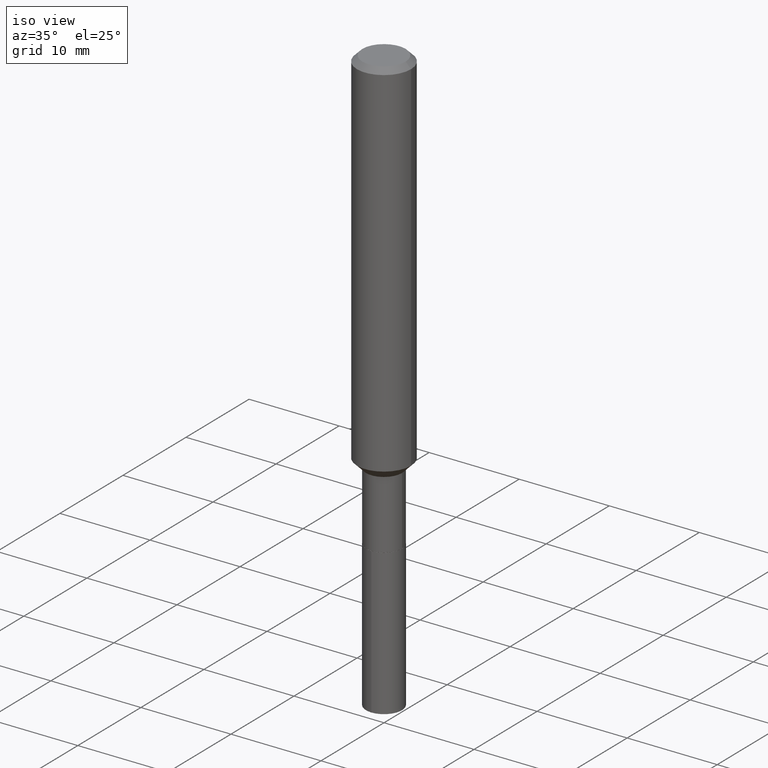
[diagram: clean part render]
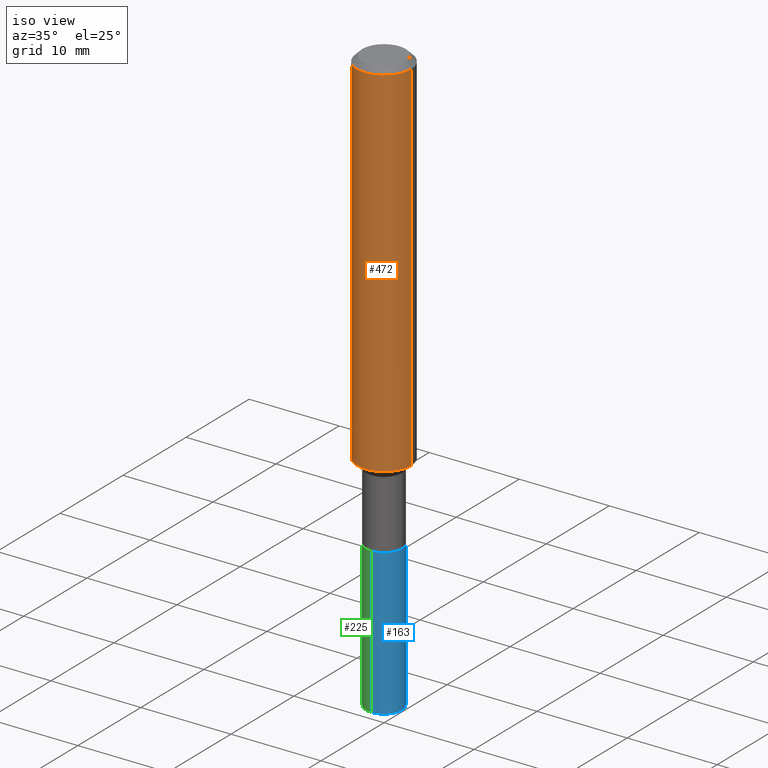
[diagram: same view with three faces highlighted in distinct colors, each labeled with its STEP entity id]
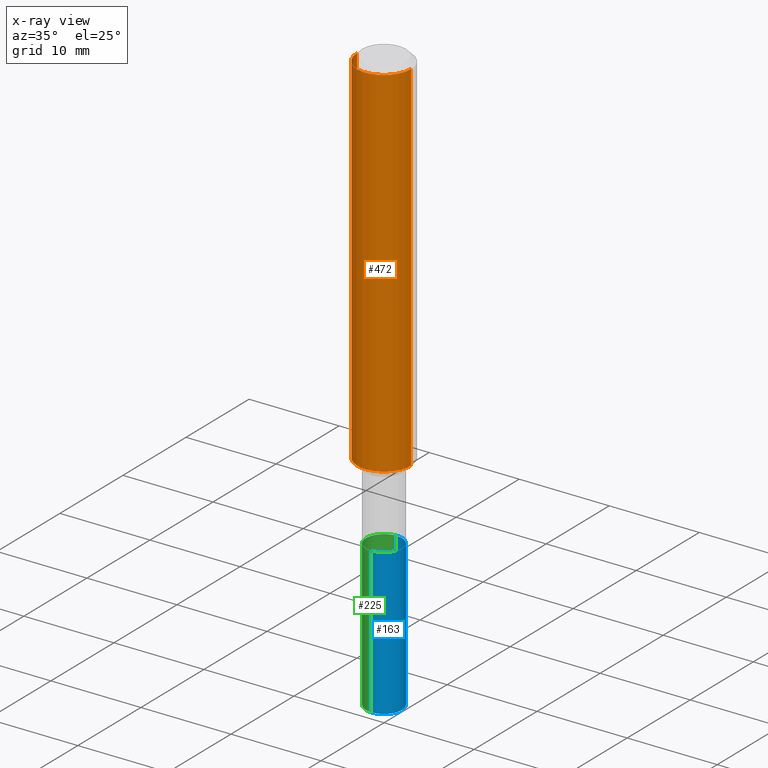
[diagram: x-ray of the same camera — body ghosted, the three highlighted faces saturated]
A machine part, iso view with three faces highlighted in distinct colors.
The next image is the same camera in x-ray (body ghosted, the three faces saturated) — at least one of them is partly hidden behind the body in this view.
Their STEP definitions:

[orange] entity #472 — the highlighted cylindrical surface (edge-blend (fillet) strip) has radius 2.9997 mm, axis along (-0, 0, 1).
#9 = VECTOR ( 'NONE', #148, 39.37007874015748143 ) ;
#10 = AXIS2_PLACEMENT_3D ( 'NONE', #476, #391, #58 ) ;
#18 = VERTEX_POINT ( 'NONE', #77 ) ;
#28 = CARTESIAN_POINT ( 'NONE',  ( 0.1181000000000001909, -6.378063535731712963E-15, -1.590549999999999464 ) ) ;
#58 = DIRECTION ( 'NONE',  ( 1.000000000000000000, -6.982962677686266711E-15, 4.876176775795935793E-29 ) ) ;
#61 = DIRECTION ( 'NONE',  ( 1.000000000000000000, -6.982962677686266711E-15, 0.000000000000000000 ) ) ;
#65 = CARTESIAN_POINT ( 'NONE',  ( -0.1181000000000001077, 8.391509709326790846E-16, -5.809262341591049389E-30 ) ) ;
#75 = EDGE_CURVE ( 'NONE', #365, #215, #305, .T. ) ;
#77 = CARTESIAN_POINT ( 'NONE',  ( -0.1180999999999999966, -1.978771245427539515E-15, -0.02362000000000014088 ) ) ;
#89 = AXIS2_PLACEMENT_3D ( 'NONE', #99, #399, #61 ) ;
#91 = ORIENTED_EDGE ( 'NONE', *, *, #75, .T. ) ;
#99 = CARTESIAN_POINT ( 'NONE',  ( 5.776197320209327532E-31, -8.246878922347559293E-17, -0.02362000000000014088 ) ) ;
#125 = ORIENTED_EDGE ( 'NONE', *, *, #348, .F. ) ;
#141 = EDGE_CURVE ( 'NONE', #290, #365, #420, .T. ) ;
#148 = DIRECTION ( 'NONE',  ( -2.445468806185136877E-29, 3.491481338843145188E-15, 1.000000000000000000 ) ) ;
#170 = CARTESIAN_POINT ( 'NONE',  ( 0.1180999999999999966, -9.071566814582237199E-16, -0.02362000000000014088 ) ) ;
#180 = LINE ( 'NONE', #65, #271 ) ;
#181 = ORIENTED_EDGE ( 'NONE', *, *, #141, .T. ) ;
#215 = VERTEX_POINT ( 'NONE', #170 ) ;
#248 = CYLINDRICAL_SURFACE ( 'NONE', #10, 0.1181000000000001077 ) ;
#271 = VECTOR ( 'NONE', #326, 39.37007874015748143 ) ;
#273 = DIRECTION ( 'NONE',  ( -2.445468806185136597E-29, 3.491481338843145583E-15, 1.000000000000000000 ) ) ;
#290 = VERTEX_POINT ( 'NONE', #426 ) ;
#299 = AXIS2_PLACEMENT_3D ( 'NONE', #374, #273, #302 ) ;
#302 = DIRECTION ( 'NONE',  ( 1.000000000000000000, -6.982962677686269077E-15, 0.000000000000000000 ) ) ;
#305 = LINE ( 'NONE', #380, #9 ) ;
#326 = DIRECTION ( 'NONE',  ( -2.445468806185136877E-29, 3.491481338843145188E-15, 1.000000000000000000 ) ) ;
#348 = EDGE_CURVE ( 'NONE', #290, #18, #180, .T. ) ;
#365 = VERTEX_POINT ( 'NONE', #28 ) ;
#374 = CARTESIAN_POINT ( 'NONE',  ( 3.889640409677768194E-29, -5.553375643496963912E-15, -1.590549999999999464 ) ) ;
#380 = CARTESIAN_POINT ( 'NONE',  ( 0.1181000000000001077, -8.246878922347488542E-16, 5.758764772215005345E-30 ) ) ;
#391 = DIRECTION ( 'NONE',  ( -2.445468806185136597E-29, 3.491481338843145583E-15, 1.000000000000000000 ) ) ;
#399 = DIRECTION ( 'NONE',  ( -2.445468806185136597E-29, 3.491481338843145583E-15, 1.000000000000000000 ) ) ;
#404 = CIRCLE ( 'NONE', #89, 0.1180999999999999966 ) ;
#420 = CIRCLE ( 'NONE', #299, 0.1181000000000001909 ) ;
#426 = CARTESIAN_POINT ( 'NONE',  ( -0.1181000000000001909, -4.714224672564283348E-15, -1.590549999999999464 ) ) ;
#427 = EDGE_CURVE ( 'NONE', #18, #215, #404, .T. ) ;
#431 = FACE_OUTER_BOUND ( 'NONE', #437, .T. ) ;
#437 = EDGE_LOOP ( 'NONE', ( #125, #181, #91, #468 ) ) ;
#468 = ORIENTED_EDGE ( 'NONE', *, *, #427, .F. ) ;
#472 = ADVANCED_FACE ( 'NONE', ( #431 ), #248, .T. ) ;
#476 = CARTESIAN_POINT ( 'NONE',  ( 0.000000000000000000, 0.000000000000000000, 0.000000000000000000 ) ) ;

[blue] entity #163 — the highlighted cylindrical surface (edge-blend (fillet) strip) has radius 2.0002 mm, axis along (-0, 0, 1).
#12 = DIRECTION ( 'NONE',  ( -2.445600324468022812E-29, 3.491292997176496654E-15, 1.000000000000000000 ) ) ;
#13 = CARTESIAN_POINT ( 'NONE',  ( 5.595524044111417134E-16, 0.07874999999999326983, -1.929100000000000259 ) ) ;
#45 = AXIS2_PLACEMENT_3D ( 'NONE', #356, #12, #382 ) ;
#56 = ORIENTED_EDGE ( 'NONE', *, *, #157, .T. ) ;
#97 = LINE ( 'NONE', #359, #430 ) ;
#101 = CARTESIAN_POINT ( 'NONE',  ( -5.499083108677304340E-16, -0.07875000000000892397, -2.567379550045322478 ) ) ;
#123 = CARTESIAN_POINT ( 'NONE',  ( -5.499083108677462112E-16, -0.07875000000000671740, -1.929099999999999593 ) ) ;
#154 = CARTESIAN_POINT ( 'NONE',  ( 5.595524044111415162E-16, 0.07874999999999102163, -2.567379550045323811 ) ) ;
#155 = CYLINDRICAL_SURFACE ( 'NONE', #438, 0.07875000000000000056 ) ;
#156 = DIRECTION ( 'NONE',  ( -2.445600324468022812E-29, 3.491292997176496654E-15, 1.000000000000000000 ) ) ;
#157 = EDGE_CURVE ( 'NONE', #484, #202, #192, .T. ) ;
#163 = ADVANCED_FACE ( 'NONE', ( #448 ), #155, .T. ) ;
#176 = EDGE_CURVE ( 'NONE', #283, #202, #203, .T. ) ;
#184 = ORIENTED_EDGE ( 'NONE', *, *, #176, .F. ) ;
#186 = ORIENTED_EDGE ( 'NONE', *, *, #398, .F. ) ;
#192 = LINE ( 'NONE', #340, #470 ) ;
#202 = VERTEX_POINT ( 'NONE', #13 ) ;
#203 = CIRCLE ( 'NONE', #490, 0.07875000000000000056 ) ;
#212 = DIRECTION ( 'NONE',  ( -2.445600324468022531E-29, 3.491292997176496654E-15, 1.000000000000000000 ) ) ;
#246 = DIRECTION ( 'NONE',  ( -2.445600324468022812E-29, 3.491292997176496654E-15, 1.000000000000000000 ) ) ;
#251 = EDGE_CURVE ( 'NONE', #388, #484, #260, .T. ) ;
#260 = CIRCLE ( 'NONE', #45, 0.07875000000000000056 ) ;
#265 = DIRECTION ( 'NONE',  ( -6.982962677686264344E-15, -1.000000000000000000, 3.469013325287953293E-15 ) ) ;
#283 = VERTEX_POINT ( 'NONE', #123 ) ;
#308 = DIRECTION ( 'NONE',  ( -2.445600324468022531E-29, 3.491292997176496654E-15, 1.000000000000000000 ) ) ;
#325 = EDGE_LOOP ( 'NONE', ( #441, #56, #184, #186 ) ) ;
#340 = CARTESIAN_POINT ( 'NONE',  ( 5.595524044111259361E-16, 0.07874999999999326983, -1.929100000000000259 ) ) ;
#356 = CARTESIAN_POINT ( 'NONE',  ( 6.278530548703893872E-29, -8.963837574076513446E-15, -2.567379550045322922 ) ) ;
#359 = CARTESIAN_POINT ( 'NONE',  ( -5.499083108677462112E-16, -0.07875000000000671740, -1.929099999999999593 ) ) ;
#382 = DIRECTION ( 'NONE',  ( -6.982962677686264344E-15, -1.000000000000000000, 6.938026650575906587E-15 ) ) ;
#388 = VERTEX_POINT ( 'NONE', #101 ) ;
#398 = EDGE_CURVE ( 'NONE', #388, #283, #97, .T. ) ;
#411 = CARTESIAN_POINT ( 'NONE',  ( 4.717553874011746679E-29, -6.735416650762311704E-15, -1.929099999999999815 ) ) ;
#430 = VECTOR ( 'NONE', #212, 39.37007874015748143 ) ;
#438 = AXIS2_PLACEMENT_3D ( 'NONE', #489, #156, #265 ) ;
#441 = ORIENTED_EDGE ( 'NONE', *, *, #251, .T. ) ;
#448 = FACE_OUTER_BOUND ( 'NONE', #325, .T. ) ;
#467 = DIRECTION ( 'NONE',  ( -6.982962677686264344E-15, -1.000000000000000000, 3.469013325287953293E-15 ) ) ;
#470 = VECTOR ( 'NONE', #308, 39.37007874015748143 ) ;
#484 = VERTEX_POINT ( 'NONE', #154 ) ;
#489 = CARTESIAN_POINT ( 'NONE',  ( 4.717553874011746679E-29, -6.735416650762311704E-15, -1.929099999999999815 ) ) ;
#490 = AXIS2_PLACEMENT_3D ( 'NONE', #411, #246, #467 ) ;

[green] entity #225 — the highlighted cylindrical surface (edge-blend (fillet) strip) has radius 2.0002 mm, axis along (-0, 0, 1).
#2 = EDGE_CURVE ( 'NONE', #484, #388, #211, .T. ) ;
#4 = DIRECTION ( 'NONE',  ( -6.982962677686264344E-15, -1.000000000000000000, 6.938026650575906587E-15 ) ) ;
#13 = CARTESIAN_POINT ( 'NONE',  ( 5.595524044111417134E-16, 0.07874999999999326983, -1.929100000000000259 ) ) ;
#41 = EDGE_LOOP ( 'NONE', ( #213, #63, #443, #51 ) ) ;
#48 = DIRECTION ( 'NONE',  ( -6.982962677686264344E-15, -1.000000000000000000, 3.469013325287953293E-15 ) ) ;
#51 = ORIENTED_EDGE ( 'NONE', *, *, #244, .F. ) ;
#63 = ORIENTED_EDGE ( 'NONE', *, *, #2, .T. ) ;
#72 = AXIS2_PLACEMENT_3D ( 'NONE', #373, #270, #4 ) ;
#97 = LINE ( 'NONE', #359, #430 ) ;
#101 = CARTESIAN_POINT ( 'NONE',  ( -5.499083108677304340E-16, -0.07875000000000892397, -2.567379550045322478 ) ) ;
#120 = AXIS2_PLACEMENT_3D ( 'NONE', #240, #428, #239 ) ;
#123 = CARTESIAN_POINT ( 'NONE',  ( -5.499083108677462112E-16, -0.07875000000000671740, -1.929099999999999593 ) ) ;
#154 = CARTESIAN_POINT ( 'NONE',  ( 5.595524044111415162E-16, 0.07874999999999102163, -2.567379550045323811 ) ) ;
#157 = EDGE_CURVE ( 'NONE', #484, #202, #192, .T. ) ;
#192 = LINE ( 'NONE', #340, #470 ) ;
#197 = CIRCLE ( 'NONE', #284, 0.07875000000000000056 ) ;
#202 = VERTEX_POINT ( 'NONE', #13 ) ;
#211 = CIRCLE ( 'NONE', #72, 0.07875000000000000056 ) ;
#212 = DIRECTION ( 'NONE',  ( -2.445600324468022531E-29, 3.491292997176496654E-15, 1.000000000000000000 ) ) ;
#213 = ORIENTED_EDGE ( 'NONE', *, *, #157, .F. ) ;
#225 = ADVANCED_FACE ( 'NONE', ( #316 ), #282, .T. ) ;
#239 = DIRECTION ( 'NONE',  ( -6.982962677686264344E-15, -1.000000000000000000, 3.469013325287953293E-15 ) ) ;
#240 = CARTESIAN_POINT ( 'NONE',  ( 4.717553874011746679E-29, -6.735416650762311704E-15, -1.929099999999999815 ) ) ;
#244 = EDGE_CURVE ( 'NONE', #202, #283, #197, .T. ) ;
#270 = DIRECTION ( 'NONE',  ( -2.445600324468022812E-29, 3.491292997176496654E-15, 1.000000000000000000 ) ) ;
#282 = CYLINDRICAL_SURFACE ( 'NONE', #120, 0.07875000000000000056 ) ;
#283 = VERTEX_POINT ( 'NONE', #123 ) ;
#284 = AXIS2_PLACEMENT_3D ( 'NONE', #315, #312, #48 ) ;
#308 = DIRECTION ( 'NONE',  ( -2.445600324468022531E-29, 3.491292997176496654E-15, 1.000000000000000000 ) ) ;
#312 = DIRECTION ( 'NONE',  ( -2.445600324468022812E-29, 3.491292997176496654E-15, 1.000000000000000000 ) ) ;
#315 = CARTESIAN_POINT ( 'NONE',  ( 4.717553874011746679E-29, -6.735416650762311704E-15, -1.929099999999999815 ) ) ;
#316 = FACE_OUTER_BOUND ( 'NONE', #41, .T. ) ;
#340 = CARTESIAN_POINT ( 'NONE',  ( 5.595524044111259361E-16, 0.07874999999999326983, -1.929100000000000259 ) ) ;
#359 = CARTESIAN_POINT ( 'NONE',  ( -5.499083108677462112E-16, -0.07875000000000671740, -1.929099999999999593 ) ) ;
#373 = CARTESIAN_POINT ( 'NONE',  ( 6.278530548703893872E-29, -8.963837574076513446E-15, -2.567379550045322922 ) ) ;
#388 = VERTEX_POINT ( 'NONE', #101 ) ;
#398 = EDGE_CURVE ( 'NONE', #388, #283, #97, .T. ) ;
#428 = DIRECTION ( 'NONE',  ( -2.445600324468022812E-29, 3.491292997176496654E-15, 1.000000000000000000 ) ) ;
#430 = VECTOR ( 'NONE', #212, 39.37007874015748143 ) ;
#443 = ORIENTED_EDGE ( 'NONE', *, *, #398, .T. ) ;
#470 = VECTOR ( 'NONE', #308, 39.37007874015748143 ) ;
#484 = VERTEX_POINT ( 'NONE', #154 ) ;